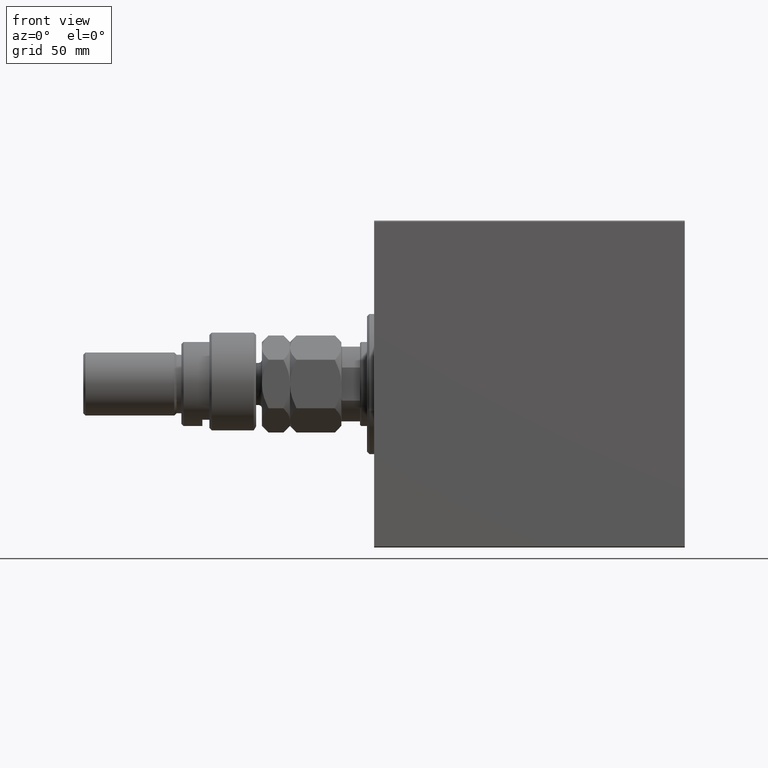
[diagram: clean part render]
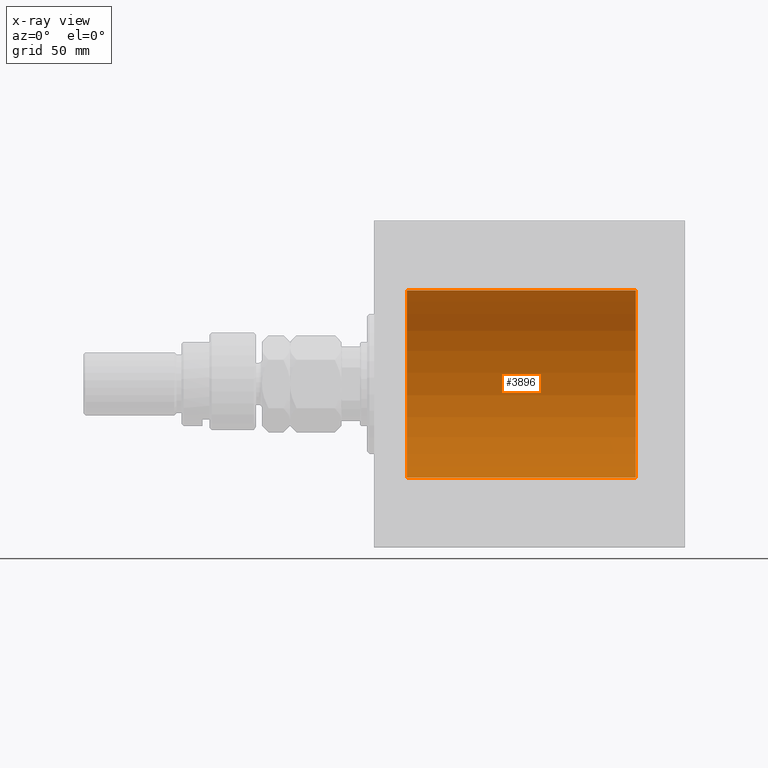
[diagram: x-ray — body ghosted, one internal face saturated and labeled with its STEP entity id]
A machine part, front view, then the same camera in x-ray: the body is ghosted and one INTERNAL B-rep face — a face not visible from any outside direction — is saturated and labeled: STEP entity #3896.
In plain terms, the highlighted cylindrical surface (partial cylindrical patch) has radius 40 mm, axis along (-1, -0, -0).
Its self-contained STEP definition (entity closure, byte-faithful):
#1760 = CIRCLE ( 'NONE', #5622, 40.00000000000000000 ) ;
#2179 = CARTESIAN_POINT ( 'NONE',  ( 13.99999999999999822, 4.898587196589413026E-15, -40.00000000000000000 ) ) ;
#3027 = DIRECTION ( 'NONE',  ( 0.000000000000000000, 0.000000000000000000, 1.000000000000000000 ) ) ;
#3481 = DIRECTION ( 'NONE',  ( -1.000000000000000000, 0.000000000000000000, 0.000000000000000000 ) ) ;
#3763 = VECTOR ( 'NONE', #9940, 1000.000000000000000 ) ;
#3896 = ADVANCED_FACE ( 'NONE', ( #16335 ), #20342, .F. ) ;
#4093 = CARTESIAN_POINT ( 'NONE',  ( 13.99999999999999822, 0.000000000000000000, 0.000000000000000000 ) ) ;
#5340 = CIRCLE ( 'NONE', #17399, 40.00000000000000000 ) ;
#5622 = AXIS2_PLACEMENT_3D ( 'NONE', #35806, #3481, #3027 ) ;
#8758 = CARTESIAN_POINT ( 'NONE',  ( 13.99999999999999822, 0.000000000000000000, 40.00000000000000000 ) ) ;
#9940 = DIRECTION ( 'NONE',  ( -1.000000000000000000, -0.000000000000000000, -0.000000000000000000 ) ) ;
#11492 = EDGE_CURVE ( 'NONE', #18006, #36507, #20807, .T. ) ;
#12100 = DIRECTION ( 'NONE',  ( -1.000000000000000000, 0.000000000000000000, 0.000000000000000000 ) ) ;
#12287 = VERTEX_POINT ( 'NONE', #2179 ) ;
#12375 = VERTEX_POINT ( 'NONE', #15125 ) ;
#13171 = ORIENTED_EDGE ( 'NONE', *, *, #26149, .T. ) ;
#15125 = CARTESIAN_POINT ( 'NONE',  ( 112.0000000000000000, 4.898587196589413026E-15, -40.00000000000000000 ) ) ;
#15395 = CARTESIAN_POINT ( 'NONE',  ( 112.0000000000000000, 0.000000000000000000, 40.00000000000000000 ) ) ;
#16335 = FACE_OUTER_BOUND ( 'NONE', #23681, .T. ) ;
#16561 = EDGE_CURVE ( 'NONE', #12375, #12287, #19422, .T. ) ;
#17399 = AXIS2_PLACEMENT_3D ( 'NONE', #4093, #12100, #30025 ) ;
#18006 = VERTEX_POINT ( 'NONE', #15395 ) ;
#19422 = LINE ( 'NONE', #23182, #46663 ) ;
#20342 = CYLINDRICAL_SURFACE ( 'NONE', #45771, 40.00000000000000000 ) ;
#20807 = LINE ( 'NONE', #31649, #3763 ) ;
#23182 = CARTESIAN_POINT ( 'NONE',  ( 112.0000000000000000, 4.898587196589413026E-15, -40.00000000000000000 ) ) ;
#23681 = EDGE_LOOP ( 'NONE', ( #38600, #43101, #34071, #13171 ) ) ;
#26149 = EDGE_CURVE ( 'NONE', #36507, #12287, #5340, .T. ) ;
#30025 = DIRECTION ( 'NONE',  ( 0.000000000000000000, 0.000000000000000000, 1.000000000000000000 ) ) ;
#30250 = DIRECTION ( 'NONE',  ( 0.000000000000000000, 0.000000000000000000, 1.000000000000000000 ) ) ;
#31649 = CARTESIAN_POINT ( 'NONE',  ( 112.0000000000000000, 0.000000000000000000, 40.00000000000000000 ) ) ;
#33793 = DIRECTION ( 'NONE',  ( -1.000000000000000000, -0.000000000000000000, -0.000000000000000000 ) ) ;
#33804 = DIRECTION ( 'NONE',  ( -1.000000000000000000, -0.000000000000000000, -0.000000000000000000 ) ) ;
#34071 = ORIENTED_EDGE ( 'NONE', *, *, #11492, .T. ) ;
#35806 = CARTESIAN_POINT ( 'NONE',  ( 112.0000000000000000, 0.000000000000000000, 0.000000000000000000 ) ) ;
#36507 = VERTEX_POINT ( 'NONE', #8758 ) ;
#36968 = EDGE_CURVE ( 'NONE', #18006, #12375, #1760, .T. ) ;
#38600 = ORIENTED_EDGE ( 'NONE', *, *, #16561, .F. ) ;
#41133 = CARTESIAN_POINT ( 'NONE',  ( 112.0000000000000000, 0.000000000000000000, 0.000000000000000000 ) ) ;
#43101 = ORIENTED_EDGE ( 'NONE', *, *, #36968, .F. ) ;
#45771 = AXIS2_PLACEMENT_3D ( 'NONE', #41133, #33793, #30250 ) ;
#46663 = VECTOR ( 'NONE', #33804, 1000.000000000000000 ) ;